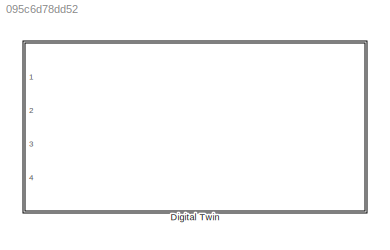
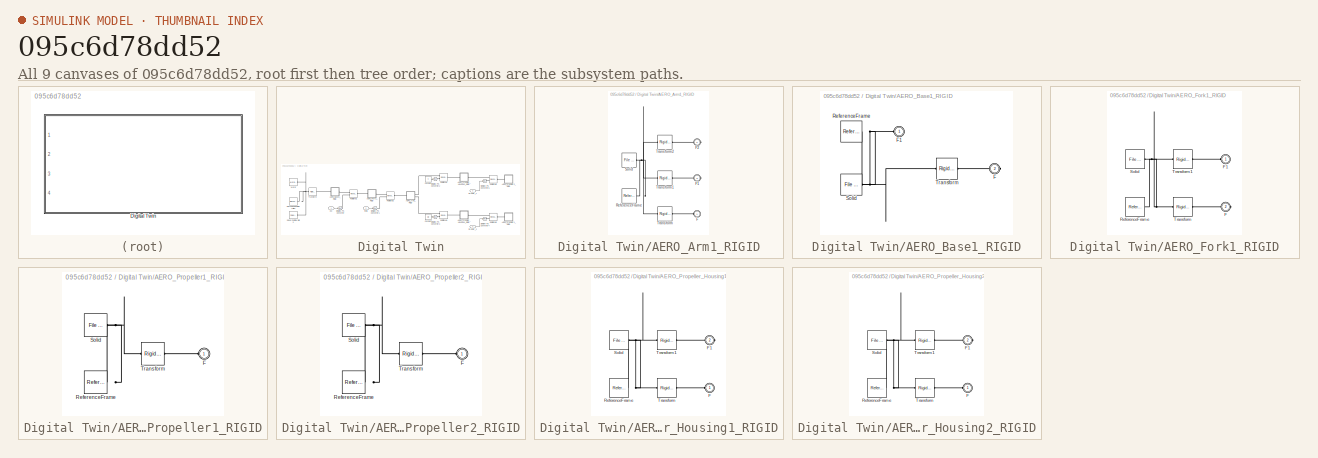
[diagram: thumbnail index - all 9 canvases of the model, root first then tree order]
MODEL slx_095c6d78dd52
KIND model
CONFIG AbsTol = auto
CONFIG EnableMultiTasking = off
CONFIG FixedStep = auto
CONFIG MaxStep = auto
CONFIG MinStep = auto
CONFIG PreLoadFcn = AERO_Assembly_DataFile
CONFIG RelTol = 1e-3
CONFIG SampleTimeConstraint = Unconstrained
CONFIG SolverName = VariableStepAuto
CONFIG StartTime = 0.0
CONFIG StopTime = 10.0
WORKSPACE source: external: MATLAB File  (data not in archive)
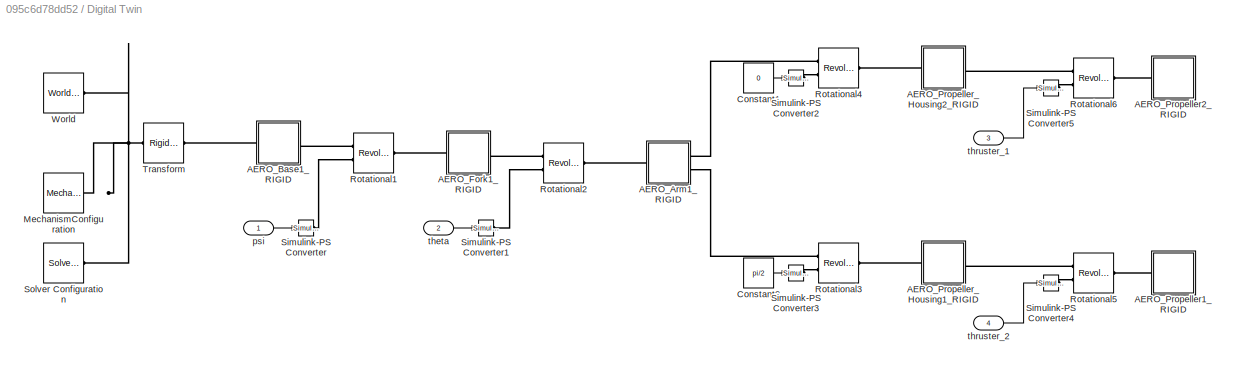
BLOCK [SubSystem] Digital Twin
  Ports = [4]
  RequestExecContextInheritance = off
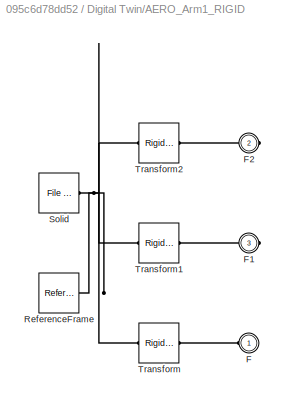
BLOCK [SubSystem] Digital Twin/AERO_Arm1_RIGID
  Ports = [0, 0, 0, 0, 0, 1, 2]
  RequestExecContextInheritance = off
BLOCK [PMIOPort] Digital Twin/AERO_Arm1_RIGID/F
  Side = Left
BLOCK [PMIOPort] Digital Twin/AERO_Arm1_RIGID/F1
  Port = 3
  Side = Right
BLOCK [PMIOPort] Digital Twin/AERO_Arm1_RIGID/F2
  Port = 2
  Side = Right
BLOCK [Reference] Digital Twin/AERO_Arm1_RIGID/ReferenceFrame  REF=sm_lib/Frames and
Transforms/Reference
Frame
  Ports = [0, 0, 0, 0, 0, 0, 1]
  SourceBlock = sm_lib/Frames and\nTransforms/Reference\nFrame
  SourceProductBaseCode = MS
  SourceType = Reference\nFrame
BLOCK [Reference] Digital Twin/AERO_Arm1_RIGID/Solid  REF=sm_lib/Body Elements/File Solid
  Ports = [0, 0, 0, 0, 0, 0, 1]
  SourceBlock = sm_lib/Body Elements/File Solid
  SourceProductBaseCode = MS
  SourceType = File Solid
BLOCK [Reference] Digital Twin/AERO_Arm1_RIGID/Transform  REF=sm_lib/Frames and
Transforms/Rigid
Transform
  Ports = [0, 0, 0, 0, 0, 1, 1]
  SourceBlock = sm_lib/Frames and\nTransforms/Rigid\nTransform
  SourceProductBaseCode = MS
  SourceType = Rigid\nTransform
BLOCK [Reference] Digital Twin/AERO_Arm1_RIGID/Transform1  REF=sm_lib/Frames and
Transforms/Rigid
Transform
  Ports = [0, 0, 0, 0, 0, 1, 1]
  SourceBlock = sm_lib/Frames and\nTransforms/Rigid\nTransform
  SourceProductBaseCode = MS
  SourceType = Rigid\nTransform
BLOCK [Reference] Digital Twin/AERO_Arm1_RIGID/Transform2  REF=sm_lib/Frames and
Transforms/Rigid
Transform
  Ports = [0, 0, 0, 0, 0, 1, 1]
  SourceBlock = sm_lib/Frames and\nTransforms/Rigid\nTransform
  SourceProductBaseCode = MS
  SourceType = Rigid\nTransform
BLOCK [SubSystem] Digital Twin/AERO_Base1_RIGID
  Ports = [0, 0, 0, 0, 0, 1, 1]
  RequestExecContextInheritance = off
BLOCK [PMIOPort] Digital Twin/AERO_Base1_RIGID/F
  Port = 2
  Side = Right
BLOCK [PMIOPort] Digital Twin/AERO_Base1_RIGID/F1
  Side = Left
BLOCK [Reference] Digital Twin/AERO_Base1_RIGID/ReferenceFrame  REF=sm_lib/Frames and
Transforms/Reference
Frame
  Ports = [0, 0, 0, 0, 0, 0, 1]
  SourceBlock = sm_lib/Frames and\nTransforms/Reference\nFrame
  SourceProductBaseCode = MS
  SourceType = Reference\nFrame
BLOCK [Reference] Digital Twin/AERO_Base1_RIGID/Solid  REF=sm_lib/Body Elements/File Solid
  Ports = [0, 0, 0, 0, 0, 0, 1]
  SourceBlock = sm_lib/Body Elements/File Solid
  SourceProductBaseCode = MS
  SourceType = File Solid
BLOCK [Reference] Digital Twin/AERO_Base1_RIGID/Transform  REF=sm_lib/Frames and
Transforms/Rigid
Transform
  Ports = [0, 0, 0, 0, 0, 1, 1]
  SourceBlock = sm_lib/Frames and\nTransforms/Rigid\nTransform
  SourceProductBaseCode = MS
  SourceType = Rigid\nTransform
BLOCK [SubSystem] Digital Twin/AERO_Fork1_RIGID
  Ports = [0, 0, 0, 0, 0, 1, 1]
  RequestExecContextInheritance = off
BLOCK [PMIOPort] Digital Twin/AERO_Fork1_RIGID/F
  Port = 2
  Side = Right
BLOCK [PMIOPort] Digital Twin/AERO_Fork1_RIGID/F1
  Side = Left
BLOCK [Reference] Digital Twin/AERO_Fork1_RIGID/ReferenceFrame  REF=sm_lib/Frames and
Transforms/Reference
Frame
  Ports = [0, 0, 0, 0, 0, 0, 1]
  SourceBlock = sm_lib/Frames and\nTransforms/Reference\nFrame
  SourceProductBaseCode = MS
  SourceType = Reference\nFrame
BLOCK [Reference] Digital Twin/AERO_Fork1_RIGID/Solid  REF=sm_lib/Body Elements/File Solid
  Ports = [0, 0, 0, 0, 0, 0, 1]
  SourceBlock = sm_lib/Body Elements/File Solid
  SourceProductBaseCode = MS
  SourceType = File Solid
BLOCK [Reference] Digital Twin/AERO_Fork1_RIGID/Transform  REF=sm_lib/Frames and
Transforms/Rigid
Transform
  Ports = [0, 0, 0, 0, 0, 1, 1]
  SourceBlock = sm_lib/Frames and\nTransforms/Rigid\nTransform
  SourceProductBaseCode = MS
  SourceType = Rigid\nTransform
BLOCK [Reference] Digital Twin/AERO_Fork1_RIGID/Transform1  REF=sm_lib/Frames and
Transforms/Rigid
Transform
  Ports = [0, 0, 0, 0, 0, 1, 1]
  SourceBlock = sm_lib/Frames and\nTransforms/Rigid\nTransform
  SourceProductBaseCode = MS
  SourceType = Rigid\nTransform
BLOCK [SubSystem] Digital Twin/AERO_Propeller1_RIGID
  Ports = [0, 0, 0, 0, 0, 1]
  RequestExecContextInheritance = off
BLOCK [PMIOPort] Digital Twin/AERO_Propeller1_RIGID/F
  Side = Left
BLOCK [Reference] Digital Twin/AERO_Propeller1_RIGID/ReferenceFrame  REF=sm_lib/Frames and
Transforms/Reference
Frame
  Ports = [0, 0, 0, 0, 0, 0, 1]
  SourceBlock = sm_lib/Frames and\nTransforms/Reference\nFrame
  SourceProductBaseCode = MS
  SourceType = Reference\nFrame
BLOCK [Reference] Digital Twin/AERO_Propeller1_RIGID/Solid  REF=sm_lib/Body Elements/File Solid
  Ports = [0, 0, 0, 0, 0, 0, 1]
  SourceBlock = sm_lib/Body Elements/File Solid
  SourceProductBaseCode = MS
  SourceType = File Solid
BLOCK [Reference] Digital Twin/AERO_Propeller1_RIGID/Transform  REF=sm_lib/Frames and
Transforms/Rigid
Transform
  Ports = [0, 0, 0, 0, 0, 1, 1]
  SourceBlock = sm_lib/Frames and\nTransforms/Rigid\nTransform
  SourceProductBaseCode = MS
  SourceType = Rigid\nTransform
BLOCK [SubSystem] Digital Twin/AERO_Propeller2_RIGID
  Ports = [0, 0, 0, 0, 0, 1]
  RequestExecContextInheritance = off
BLOCK [PMIOPort] Digital Twin/AERO_Propeller2_RIGID/F
  Side = Left
BLOCK [Reference] Digital Twin/AERO_Propeller2_RIGID/ReferenceFrame  REF=sm_lib/Frames and
Transforms/Reference
Frame
  Ports = [0, 0, 0, 0, 0, 0, 1]
  SourceBlock = sm_lib/Frames and\nTransforms/Reference\nFrame
  SourceProductBaseCode = MS
  SourceType = Reference\nFrame
BLOCK [Reference] Digital Twin/AERO_Propeller2_RIGID/Solid  REF=sm_lib/Body Elements/File Solid
  Ports = [0, 0, 0, 0, 0, 0, 1]
  SourceBlock = sm_lib/Body Elements/File Solid
  SourceProductBaseCode = MS
  SourceType = File Solid
BLOCK [Reference] Digital Twin/AERO_Propeller2_RIGID/Transform  REF=sm_lib/Frames and
Transforms/Rigid
Transform
  Ports = [0, 0, 0, 0, 0, 1, 1]
  SourceBlock = sm_lib/Frames and\nTransforms/Rigid\nTransform
  SourceProductBaseCode = MS
  SourceType = Rigid\nTransform
BLOCK [SubSystem] Digital Twin/AERO_Propeller_Housing1_RIGID
  Ports = [0, 0, 0, 0, 0, 1, 1]
  RequestExecContextInheritance = off
BLOCK [PMIOPort] Digital Twin/AERO_Propeller_Housing1_RIGID/F
  Side = Left
BLOCK [PMIOPort] Digital Twin/AERO_Propeller_Housing1_RIGID/F1
  Port = 2
  Side = Right
BLOCK [Reference] Digital Twin/AERO_Propeller_Housing1_RIGID/ReferenceFrame  REF=sm_lib/Frames and
Transforms/Reference
Frame
  Ports = [0, 0, 0, 0, 0, 0, 1]
  SourceBlock = sm_lib/Frames and\nTransforms/Reference\nFrame
  SourceProductBaseCode = MS
  SourceType = Reference\nFrame
BLOCK [Reference] Digital Twin/AERO_Propeller_Housing1_RIGID/Solid  REF=sm_lib/Body Elements/File Solid
  Ports = [0, 0, 0, 0, 0, 0, 1]
  SourceBlock = sm_lib/Body Elements/File Solid
  SourceProductBaseCode = MS
  SourceType = File Solid
BLOCK [Reference] Digital Twin/AERO_Propeller_Housing1_RIGID/Transform  REF=sm_lib/Frames and
Transforms/Rigid
Transform
  Ports = [0, 0, 0, 0, 0, 1, 1]
  SourceBlock = sm_lib/Frames and\nTransforms/Rigid\nTransform
  SourceProductBaseCode = MS
  SourceType = Rigid\nTransform
BLOCK [Reference] Digital Twin/AERO_Propeller_Housing1_RIGID/Transform1  REF=sm_lib/Frames and
Transforms/Rigid
Transform
  Ports = [0, 0, 0, 0, 0, 1, 1]
  SourceBlock = sm_lib/Frames and\nTransforms/Rigid\nTransform
  SourceProductBaseCode = MS
  SourceType = Rigid\nTransform
BLOCK [SubSystem] Digital Twin/AERO_Propeller_Housing2_RIGID
  Ports = [0, 0, 0, 0, 0, 1, 1]
  RequestExecContextInheritance = off
BLOCK [PMIOPort] Digital Twin/AERO_Propeller_Housing2_RIGID/F
  Side = Left
BLOCK [PMIOPort] Digital Twin/AERO_Propeller_Housing2_RIGID/F1
  Port = 2
  Side = Right
BLOCK [Reference] Digital Twin/AERO_Propeller_Housing2_RIGID/ReferenceFrame  REF=sm_lib/Frames and
Transforms/Reference
Frame
  Ports = [0, 0, 0, 0, 0, 0, 1]
  SourceBlock = sm_lib/Frames and\nTransforms/Reference\nFrame
  SourceProductBaseCode = MS
  SourceType = Reference\nFrame
BLOCK [Reference] Digital Twin/AERO_Propeller_Housing2_RIGID/Solid  REF=sm_lib/Body Elements/File Solid
  Ports = [0, 0, 0, 0, 0, 0, 1]
  SourceBlock = sm_lib/Body Elements/File Solid
  SourceProductBaseCode = MS
  SourceType = File Solid
BLOCK [Reference] Digital Twin/AERO_Propeller_Housing2_RIGID/Transform  REF=sm_lib/Frames and
Transforms/Rigid
Transform
  Ports = [0, 0, 0, 0, 0, 1, 1]
  SourceBlock = sm_lib/Frames and\nTransforms/Rigid\nTransform
  SourceProductBaseCode = MS
  SourceType = Rigid\nTransform
BLOCK [Reference] Digital Twin/AERO_Propeller_Housing2_RIGID/Transform1  REF=sm_lib/Frames and
Transforms/Rigid
Transform
  Ports = [0, 0, 0, 0, 0, 1, 1]
  SourceBlock = sm_lib/Frames and\nTransforms/Rigid\nTransform
  SourceProductBaseCode = MS
  SourceType = Rigid\nTransform
BLOCK [Constant] Digital Twin/Constant1
  Value = 0
BLOCK [Constant] Digital Twin/Constant2
  Value = pi/2
BLOCK [Reference] Digital Twin/MechanismConfiguration  REF=sm_lib/Utilities/Mechanism
Configuration
  Ports = [0, 0, 0, 0, 0, 0, 1]
  SourceBlock = sm_lib/Utilities/Mechanism\nConfiguration
  SourceProductBaseCode = MS
  SourceType = Mechanism\nConfiguration
BLOCK [Reference] Digital Twin/Rotational1  REF=sm_lib/Joints/Revolute Joint
  Ports = [0, 0, 0, 0, 0, 2, 1]
  SourceBlock = sm_lib/Joints/Revolute Joint
  SourceProductBaseCode = MS
  SourceType = Revolute Joint
BLOCK [Reference] Digital Twin/Rotational2  REF=sm_lib/Joints/Revolute Joint
  Ports = [0, 0, 0, 0, 0, 2, 1]
  SourceBlock = sm_lib/Joints/Revolute Joint
  SourceProductBaseCode = MS
  SourceType = Revolute Joint
BLOCK [Reference] Digital Twin/Rotational3  REF=sm_lib/Joints/Revolute Joint
  Ports = [0, 0, 0, 0, 0, 2, 1]
  SourceBlock = sm_lib/Joints/Revolute Joint
  SourceProductBaseCode = MS
  SourceType = Revolute Joint
BLOCK [Reference] Digital Twin/Rotational4  REF=sm_lib/Joints/Revolute Joint
  Ports = [0, 0, 0, 0, 0, 2, 1]
  SourceBlock = sm_lib/Joints/Revolute Joint
  SourceProductBaseCode = MS
  SourceType = Revolute Joint
BLOCK [Reference] Digital Twin/Rotational5  REF=sm_lib/Joints/Revolute Joint
  Ports = [0, 0, 0, 0, 0, 2, 1]
  SourceBlock = sm_lib/Joints/Revolute Joint
  SourceProductBaseCode = MS
  SourceType = Revolute Joint
BLOCK [Reference] Digital Twin/Rotational6  REF=sm_lib/Joints/Revolute Joint
  Ports = [0, 0, 0, 0, 0, 2, 1]
  SourceBlock = sm_lib/Joints/Revolute Joint
  SourceProductBaseCode = MS
  SourceType = Revolute Joint
BLOCK [Reference] Digital Twin/Simulink-PS Converter  REF=nesl_utility/Simulink-PS
Converter
  Ports = [1, 0, 0, 0, 0, 0, 1]
  SourceBlock = nesl_utility/Simulink-PS\nConverter
  SourceProductBaseCode = SS
  SourceType = Simulink-PS\nConverter
BLOCK [Reference] Digital Twin/Simulink-PS Converter1  REF=nesl_utility/Simulink-PS
Converter
  Ports = [1, 0, 0, 0, 0, 0, 1]
  SourceBlock = nesl_utility/Simulink-PS\nConverter
  SourceProductBaseCode = SS
  SourceType = Simulink-PS\nConverter
BLOCK [Reference] Digital Twin/Simulink-PS Converter2  REF=nesl_utility/Simulink-PS
Converter
  Ports = [1, 0, 0, 0, 0, 0, 1]
  SourceBlock = nesl_utility/Simulink-PS\nConverter
  SourceProductBaseCode = SS
  SourceType = Simulink-PS\nConverter
BLOCK [Reference] Digital Twin/Simulink-PS Converter3  REF=nesl_utility/Simulink-PS
Converter
  Ports = [1, 0, 0, 0, 0, 0, 1]
  SourceBlock = nesl_utility/Simulink-PS\nConverter
  SourceProductBaseCode = SS
  SourceType = Simulink-PS\nConverter
BLOCK [Reference] Digital Twin/Simulink-PS Converter4  REF=nesl_utility/Simulink-PS
Converter
  Ports = [1, 0, 0, 0, 0, 0, 1]
  SourceBlock = nesl_utility/Simulink-PS\nConverter
  SourceProductBaseCode = SS
  SourceType = Simulink-PS\nConverter
BLOCK [Reference] Digital Twin/Simulink-PS Converter5  REF=nesl_utility/Simulink-PS
Converter
  Ports = [1, 0, 0, 0, 0, 0, 1]
  SourceBlock = nesl_utility/Simulink-PS\nConverter
  SourceProductBaseCode = SS
  SourceType = Simulink-PS\nConverter
BLOCK [Reference] Digital Twin/Solver Configuration  REF=nesl_utility/Solver
Configuration
  Ports = [0, 0, 0, 0, 0, 0, 1]
  SourceBlock = nesl_utility/Solver\nConfiguration
  SourceProductBaseCode = SS
  SourceType = Solver\nConfiguration
BLOCK [Reference] Digital Twin/Transform  REF=sm_lib/Frames and
Transforms/Rigid
Transform
  Ports = [0, 0, 0, 0, 0, 1, 1]
  SourceBlock = sm_lib/Frames and\nTransforms/Rigid\nTransform
  SourceProductBaseCode = MS
  SourceType = Rigid\nTransform
BLOCK [Reference] Digital Twin/World  REF=sm_lib/Frames and
Transforms/World Frame
  Ports = [0, 0, 0, 0, 0, 0, 1]
  SourceBlock = sm_lib/Frames and\nTransforms/World Frame
  SourceProductBaseCode = MS
  SourceType = World Frame
BLOCK [Inport] Digital Twin/psi
BLOCK [Inport] Digital Twin/theta
  Port = 2
BLOCK [Inport] Digital Twin/thruster_1
  Port = 3
BLOCK [Inport] Digital Twin/thruster_2
  Port = 4
LINE Digital Twin/Constant1:1 -> Digital Twin/Simulink-PS Converter2:1
LINE Digital Twin/Constant2:1 -> Digital Twin/Simulink-PS Converter3:1
LINE Digital Twin/psi:1 -> Digital Twin/Simulink-PS Converter:1
LINE Digital Twin/theta:1 -> Digital Twin/Simulink-PS Converter1:1
LINE Digital Twin/thruster_1:1 -> Digital Twin/Simulink-PS Converter5:1
LINE Digital Twin/thruster_2:1 -> Digital Twin/Simulink-PS Converter4:1
PLINE Digital Twin/AERO_Arm1_RIGID/F1:RConn1 -- Digital Twin/AERO_Arm1_RIGID/Transform1:RConn1
PLINE Digital Twin/AERO_Arm1_RIGID/F2:RConn1 -- Digital Twin/AERO_Arm1_RIGID/Transform2:RConn1
PLINE Digital Twin/AERO_Arm1_RIGID/F:RConn1 -- Digital Twin/AERO_Arm1_RIGID/Transform:RConn1
PNET net1: Digital Twin/AERO_Arm1_RIGID/ReferenceFrame:RConn1 -- Digital Twin/AERO_Arm1_RIGID/Solid:RConn1 -- Digital Twin/AERO_Arm1_RIGID/Transform1:LConn1 -- Digital Twin/AERO_Arm1_RIGID/Transform2:LConn1 -- Digital Twin/AERO_Arm1_RIGID/Transform:LConn1
PLINE Digital Twin/AERO_Arm1_RIGID:LConn1 -- Digital Twin/Rotational2:RConn1
PLINE Digital Twin/AERO_Arm1_RIGID:RConn1 -- Digital Twin/Rotational4:LConn1
PLINE Digital Twin/AERO_Arm1_RIGID:RConn2 -- Digital Twin/Rotational3:LConn1
PNET net2: Digital Twin/AERO_Base1_RIGID/F1:RConn1 -- Digital Twin/AERO_Base1_RIGID/ReferenceFrame:RConn1 -- Digital Twin/AERO_Base1_RIGID/Solid:RConn1 -- Digital Twin/AERO_Base1_RIGID/Transform:LConn1
PLINE Digital Twin/AERO_Base1_RIGID/F:RConn1 -- Digital Twin/AERO_Base1_RIGID/Transform:RConn1
PLINE Digital Twin/AERO_Base1_RIGID:LConn1 -- Digital Twin/Transform:RConn1
PLINE Digital Twin/AERO_Base1_RIGID:RConn1 -- Digital Twin/Rotational1:LConn1
PLINE Digital Twin/AERO_Fork1_RIGID/F1:RConn1 -- Digital Twin/AERO_Fork1_RIGID/Transform1:RConn1
PLINE Digital Twin/AERO_Fork1_RIGID/F:RConn1 -- Digital Twin/AERO_Fork1_RIGID/Transform:RConn1
PNET net3: Digital Twin/AERO_Fork1_RIGID/ReferenceFrame:RConn1 -- Digital Twin/AERO_Fork1_RIGID/Solid:RConn1 -- Digital Twin/AERO_Fork1_RIGID/Transform1:LConn1 -- Digital Twin/AERO_Fork1_RIGID/Transform:LConn1
PLINE Digital Twin/AERO_Fork1_RIGID:LConn1 -- Digital Twin/Rotational1:RConn1
PLINE Digital Twin/AERO_Fork1_RIGID:RConn1 -- Digital Twin/Rotational2:LConn1
PLINE Digital Twin/AERO_Propeller1_RIGID/F:RConn1 -- Digital Twin/AERO_Propeller1_RIGID/Transform:RConn1
PNET net4: Digital Twin/AERO_Propeller1_RIGID/ReferenceFrame:RConn1 -- Digital Twin/AERO_Propeller1_RIGID/Solid:RConn1 -- Digital Twin/AERO_Propeller1_RIGID/Transform:LConn1
PLINE Digital Twin/AERO_Propeller1_RIGID:LConn1 -- Digital Twin/Rotational5:RConn1
PLINE Digital Twin/AERO_Propeller2_RIGID/F:RConn1 -- Digital Twin/AERO_Propeller2_RIGID/Transform:RConn1
PNET net5: Digital Twin/AERO_Propeller2_RIGID/ReferenceFrame:RConn1 -- Digital Twin/AERO_Propeller2_RIGID/Solid:RConn1 -- Digital Twin/AERO_Propeller2_RIGID/Transform:LConn1
PLINE Digital Twin/AERO_Propeller2_RIGID:LConn1 -- Digital Twin/Rotational6:RConn1
PLINE Digital Twin/AERO_Propeller_Housing1_RIGID/F1:RConn1 -- Digital Twin/AERO_Propeller_Housing1_RIGID/Transform1:RConn1
PLINE Digital Twin/AERO_Propeller_Housing1_RIGID/F:RConn1 -- Digital Twin/AERO_Propeller_Housing1_RIGID/Transform:RConn1
PNET net6: Digital Twin/AERO_Propeller_Housing1_RIGID/ReferenceFrame:RConn1 -- Digital Twin/AERO_Propeller_Housing1_RIGID/Solid:RConn1 -- Digital Twin/AERO_Propeller_Housing1_RIGID/Transform1:LConn1 -- Digital Twin/AERO_Propeller_Housing1_RIGID/Transform:LConn1
PLINE Digital Twin/AERO_Propeller_Housing1_RIGID:LConn1 -- Digital Twin/Rotational3:RConn1
PLINE Digital Twin/AERO_Propeller_Housing1_RIGID:RConn1 -- Digital Twin/Rotational5:LConn1
PLINE Digital Twin/AERO_Propeller_Housing2_RIGID/F1:RConn1 -- Digital Twin/AERO_Propeller_Housing2_RIGID/Transform1:RConn1
PLINE Digital Twin/AERO_Propeller_Housing2_RIGID/F:RConn1 -- Digital Twin/AERO_Propeller_Housing2_RIGID/Transform:RConn1
PNET net7: Digital Twin/AERO_Propeller_Housing2_RIGID/ReferenceFrame:RConn1 -- Digital Twin/AERO_Propeller_Housing2_RIGID/Solid:RConn1 -- Digital Twin/AERO_Propeller_Housing2_RIGID/Transform1:LConn1 -- Digital Twin/AERO_Propeller_Housing2_RIGID/Transform:LConn1
PLINE Digital Twin/AERO_Propeller_Housing2_RIGID:LConn1 -- Digital Twin/Rotational4:RConn1
PLINE Digital Twin/AERO_Propeller_Housing2_RIGID:RConn1 -- Digital Twin/Rotational6:LConn1
PNET net8: Digital Twin/MechanismConfiguration:RConn1 -- Digital Twin/Solver Configuration:RConn1 -- Digital Twin/Transform:LConn1 -- Digital Twin/World:RConn1
PLINE Digital Twin/Rotational1:LConn2 -- Digital Twin/Simulink-PS Converter:RConn1
PLINE Digital Twin/Rotational2:LConn2 -- Digital Twin/Simulink-PS Converter1:RConn1
PLINE Digital Twin/Rotational3:LConn2 -- Digital Twin/Simulink-PS Converter3:RConn1
PLINE Digital Twin/Rotational4:LConn2 -- Digital Twin/Simulink-PS Converter2:RConn1
PLINE Digital Twin/Rotational5:LConn2 -- Digital Twin/Simulink-PS Converter4:RConn1
PLINE Digital Twin/Rotational6:LConn2 -- Digital Twin/Simulink-PS Converter5:RConn1
note: PNET lines group multi-terminal physical nets as a canonical sorted terminal list (undirected conserving connections); 2-terminal nets keep the pairwise PLINE form
